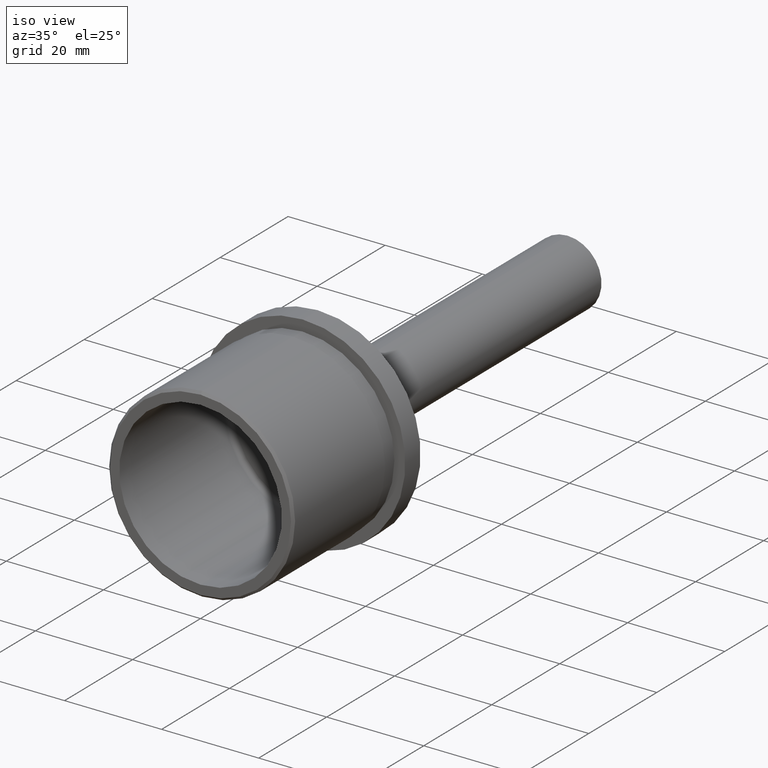
[diagram: clean part render]
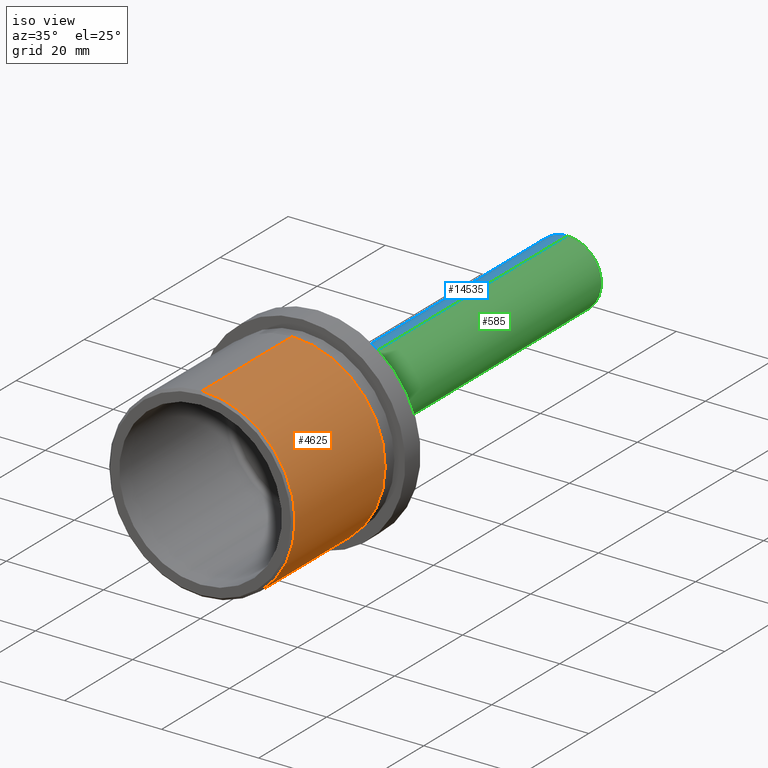
[diagram: same view with three faces highlighted in distinct colors, each labeled with its STEP entity id]
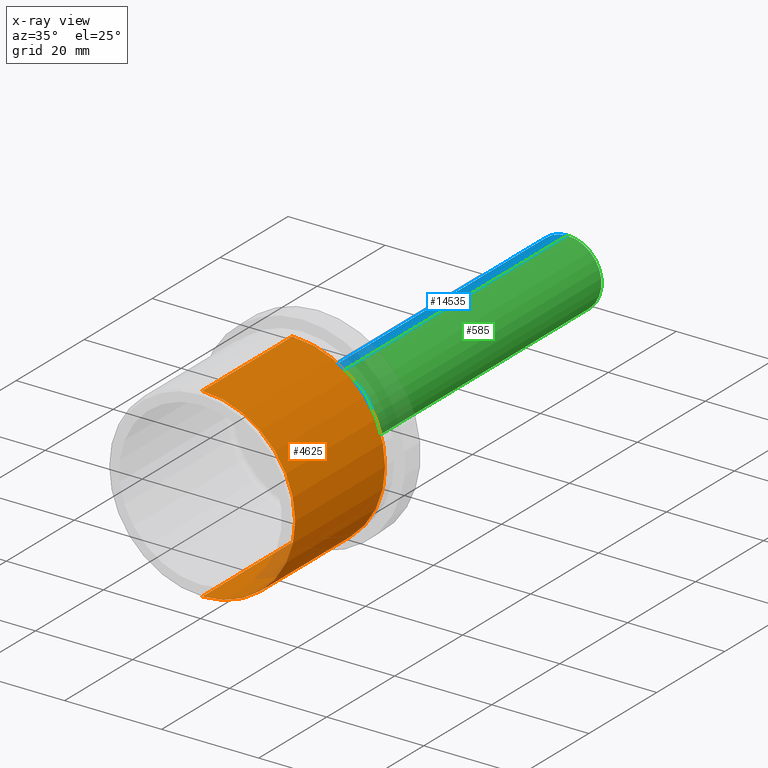
[diagram: x-ray of the same camera — body ghosted, the three highlighted faces saturated]
A machine part, iso view with three faces highlighted in distinct colors.
The next image is the same camera in x-ray (body ghosted, the three faces saturated) — at least one of them is partly hidden behind the body in this view.
Their STEP definitions:

[orange] entity #4625 — the highlighted cylindrical surface (partial cylindrical patch) has radius 19.15 mm, axis along (-0, -1, -0).
#254 = CIRCLE ( 'NONE', #8988, 19.15000000000000200 ) ;
#259 = VERTEX_POINT ( 'NONE', #7801 ) ;
#300 = LINE ( 'NONE', #5862, #1967 ) ;
#963 = VERTEX_POINT ( 'NONE', #1171 ) ;
#1171 = CARTESIAN_POINT ( 'NONE',  ( 0.0000000000000000000, 27.00000000000000000, -19.14999999999999900 ) ) ;
#1259 = DIRECTION ( 'NONE',  ( -0.0000000000000000000, -1.000000000000000000, -0.0000000000000000000 ) ) ;
#1967 = VECTOR ( 'NONE', #19537, 1000.000000000000000 ) ;
#2225 = FACE_OUTER_BOUND ( 'NONE', #11492, .T. ) ;
#2725 = CARTESIAN_POINT ( 'NONE',  ( 0.0000000000000000000, 0.5000000000000004400, 19.15000000000000200 ) ) ;
#2776 = CARTESIAN_POINT ( 'NONE',  ( 0.0000000000000000000, 0.5000000000000004400, 0.0000000000000000000 ) ) ;
#3545 = DIRECTION ( 'NONE',  ( 0.0000000000000000000, 0.0000000000000000000, -1.000000000000000000 ) ) ;
#3958 = DIRECTION ( 'NONE',  ( 0.0000000000000000000, 0.0000000000000000000, -1.000000000000000000 ) ) ;
#4385 = ORIENTED_EDGE ( 'NONE', *, *, #17042, .F. ) ;
#4625 = ADVANCED_FACE ( 'NONE', ( #2225 ), #8462, .T. ) ;
#4891 = CARTESIAN_POINT ( 'NONE',  ( 0.0000000000000000000, 32.00000000000000000, 0.0000000000000000000 ) ) ;
#4958 = EDGE_CURVE ( 'NONE', #259, #13490, #6293, .T. ) ;
#5838 = CARTESIAN_POINT ( 'NONE',  ( 2.345198620367181400E-015, 32.00000000000000000, 19.14999999999999900 ) ) ;
#5862 = CARTESIAN_POINT ( 'NONE',  ( 0.0000000000000000000, 32.00000000000000000, -19.14999999999999900 ) ) ;
#6253 = DIRECTION ( 'NONE',  ( 0.0000000000000000000, 0.0000000000000000000, -1.000000000000000000 ) ) ;
#6293 = LINE ( 'NONE', #5838, #17519 ) ;
#6945 = AXIS2_PLACEMENT_3D ( 'NONE', #4891, #12715, #3545 ) ;
#7801 = CARTESIAN_POINT ( 'NONE',  ( 2.345198620367181000E-015, 27.00000000000000000, 19.14999999999999900 ) ) ;
#8462 = CYLINDRICAL_SURFACE ( 'NONE', #6945, 19.14999999999999900 ) ;
#8988 = AXIS2_PLACEMENT_3D ( 'NONE', #2776, #1259, #3958 ) ;
#9197 = AXIS2_PLACEMENT_3D ( 'NONE', #15468, #13858, #6253 ) ;
#9222 = EDGE_CURVE ( 'NONE', #963, #259, #10777, .T. ) ;
#10371 = ORIENTED_EDGE ( 'NONE', *, *, #9222, .T. ) ;
#10777 = CIRCLE ( 'NONE', #9197, 19.14999999999999900 ) ;
#11492 = EDGE_LOOP ( 'NONE', ( #10371, #12100, #4385, #15228 ) ) ;
#12100 = ORIENTED_EDGE ( 'NONE', *, *, #4958, .T. ) ;
#12715 = DIRECTION ( 'NONE',  ( -0.0000000000000000000, -1.000000000000000000, -0.0000000000000000000 ) ) ;
#12754 = EDGE_CURVE ( 'NONE', #963, #13552, #300, .T. ) ;
#13490 = VERTEX_POINT ( 'NONE', #2725 ) ;
#13552 = VERTEX_POINT ( 'NONE', #18038 ) ;
#13858 = DIRECTION ( 'NONE',  ( -0.0000000000000000000, -1.000000000000000000, -0.0000000000000000000 ) ) ;
#14712 = DIRECTION ( 'NONE',  ( -0.0000000000000000000, -1.000000000000000000, -0.0000000000000000000 ) ) ;
#15228 = ORIENTED_EDGE ( 'NONE', *, *, #12754, .F. ) ;
#15468 = CARTESIAN_POINT ( 'NONE',  ( 0.0000000000000000000, 27.00000000000000000, 0.0000000000000000000 ) ) ;
#17042 = EDGE_CURVE ( 'NONE', #13552, #13490, #254, .T. ) ;
#17519 = VECTOR ( 'NONE', #14712, 1000.000000000000000 ) ;
#18038 = CARTESIAN_POINT ( 'NONE',  ( 2.345198620367182200E-015, 0.5000000000000004400, -19.15000000000000200 ) ) ;
#19537 = DIRECTION ( 'NONE',  ( -0.0000000000000000000, -1.000000000000000000, -0.0000000000000000000 ) ) ;

[blue] entity #14535 — the highlighted cylindrical surface (partial cylindrical patch) has radius 7 mm, axis along (-0, -1, -0).
#314 = DIRECTION ( 'NONE',  ( 0.0000000000000000000, 0.0000000000000000000, -1.000000000000000000 ) ) ;
#555 = ORIENTED_EDGE ( 'NONE', *, *, #15385, .F. ) ;
#647 = LINE ( 'NONE', #7256, #15234 ) ;
#1222 = DIRECTION ( 'NONE',  ( -0.0000000000000000000, -1.000000000000000000, -0.0000000000000000000 ) ) ;
#1525 = VERTEX_POINT ( 'NONE', #11651 ) ;
#2281 = EDGE_CURVE ( 'NONE', #1525, #4856, #19745, .T. ) ;
#2640 = ORIENTED_EDGE ( 'NONE', *, *, #19696, .T. ) ;
#3618 = FACE_OUTER_BOUND ( 'NONE', #12402, .T. ) ;
#3680 = CARTESIAN_POINT ( 'NONE',  ( 1.140915624175497200E-015, 41.00000000000000000, 7.000000000000006200 ) ) ;
#3715 = CARTESIAN_POINT ( 'NONE',  ( 0.0000000000000000000, 41.00000000000000000, -7.000000000000006200 ) ) ;
#4023 = AXIS2_PLACEMENT_3D ( 'NONE', #15331, #9269, #314 ) ;
#4856 = VERTEX_POINT ( 'NONE', #3680 ) ;
#4917 = CARTESIAN_POINT ( 'NONE',  ( 0.0000000000000000000, 107.9999999999999900, -7.000000000000000000 ) ) ;
#5829 = CARTESIAN_POINT ( 'NONE',  ( 8.572527594031475200E-016, 32.00000000000000000, 7.000000000000002700 ) ) ;
#6386 = AXIS2_PLACEMENT_3D ( 'NONE', #14997, #10271, #11735 ) ;
#6448 = CIRCLE ( 'NONE', #4023, 7.000000000000000000 ) ;
#7256 = CARTESIAN_POINT ( 'NONE',  ( 0.0000000000000000000, 32.00000000000000000, -7.000000000000002700 ) ) ;
#7507 = DIRECTION ( 'NONE',  ( 0.0000000000000000000, 0.0000000000000000000, -1.000000000000000000 ) ) ;
#8168 = CIRCLE ( 'NONE', #6386, 7.000000000000006200 ) ;
#8461 = AXIS2_PLACEMENT_3D ( 'NONE', #10460, #1222, #7507 ) ;
#8825 = VERTEX_POINT ( 'NONE', #4917 ) ;
#9269 = DIRECTION ( 'NONE',  ( -0.0000000000000000000, -1.000000000000000000, -0.0000000000000000000 ) ) ;
#9995 = EDGE_CURVE ( 'NONE', #1525, #8825, #6448, .T. ) ;
#10271 = DIRECTION ( 'NONE',  ( -0.0000000000000000000, -1.000000000000000000, -0.0000000000000000000 ) ) ;
#10321 = DIRECTION ( 'NONE',  ( -0.0000000000000000000, -1.000000000000000000, -0.0000000000000000000 ) ) ;
#10460 = CARTESIAN_POINT ( 'NONE',  ( 0.0000000000000000000, 32.00000000000000000, 0.0000000000000000000 ) ) ;
#11164 = VECTOR ( 'NONE', #10321, 1000.000000000000000 ) ;
#11651 = CARTESIAN_POINT ( 'NONE',  ( 8.572527594031474200E-016, 107.9999999999999900, 7.000000000000000000 ) ) ;
#11735 = DIRECTION ( 'NONE',  ( 0.0000000000000000000, 0.0000000000000000000, -1.000000000000000000 ) ) ;
#12402 = EDGE_LOOP ( 'NONE', ( #14353, #12831, #2640, #555 ) ) ;
#12831 = ORIENTED_EDGE ( 'NONE', *, *, #9995, .T. ) ;
#12914 = CYLINDRICAL_SURFACE ( 'NONE', #8461, 7.000000000000002700 ) ;
#14353 = ORIENTED_EDGE ( 'NONE', *, *, #2281, .F. ) ;
#14535 = ADVANCED_FACE ( 'NONE', ( #3618 ), #12914, .T. ) ;
#14997 = CARTESIAN_POINT ( 'NONE',  ( 0.0000000000000000000, 41.00000000000000000, 0.0000000000000000000 ) ) ;
#15234 = VECTOR ( 'NONE', #19382, 1000.000000000000000 ) ;
#15331 = CARTESIAN_POINT ( 'NONE',  ( 0.0000000000000000000, 107.9999999999999900, 0.0000000000000000000 ) ) ;
#15385 = EDGE_CURVE ( 'NONE', #4856, #15833, #8168, .T. ) ;
#15833 = VERTEX_POINT ( 'NONE', #3715 ) ;
#19382 = DIRECTION ( 'NONE',  ( -0.0000000000000000000, -1.000000000000000000, -0.0000000000000000000 ) ) ;
#19696 = EDGE_CURVE ( 'NONE', #8825, #15833, #647, .T. ) ;
#19745 = LINE ( 'NONE', #5829, #11164 ) ;

[green] entity #585 — the highlighted cylindrical surface (partial cylindrical patch) has radius 7 mm, axis along (-0, -1, -0).
#585 = ADVANCED_FACE ( 'NONE', ( #9756 ), #7857, .T. ) ;
#647 = LINE ( 'NONE', #7256, #15234 ) ;
#700 = DIRECTION ( 'NONE',  ( 0.0000000000000000000, 0.0000000000000000000, -1.000000000000000000 ) ) ;
#1525 = VERTEX_POINT ( 'NONE', #11651 ) ;
#2281 = EDGE_CURVE ( 'NONE', #1525, #4856, #19745, .T. ) ;
#2809 = CARTESIAN_POINT ( 'NONE',  ( 0.0000000000000000000, 32.00000000000000000, 0.0000000000000000000 ) ) ;
#3120 = AXIS2_PLACEMENT_3D ( 'NONE', #12885, #15767, #17367 ) ;
#3168 = CIRCLE ( 'NONE', #5143, 7.000000000000000000 ) ;
#3188 = ORIENTED_EDGE ( 'NONE', *, *, #8455, .F. ) ;
#3680 = CARTESIAN_POINT ( 'NONE',  ( 1.140915624175497200E-015, 41.00000000000000000, 7.000000000000006200 ) ) ;
#3715 = CARTESIAN_POINT ( 'NONE',  ( 0.0000000000000000000, 41.00000000000000000, -7.000000000000006200 ) ) ;
#4335 = DIRECTION ( 'NONE',  ( -0.0000000000000000000, -1.000000000000000000, -0.0000000000000000000 ) ) ;
#4761 = EDGE_CURVE ( 'NONE', #8825, #1525, #3168, .T. ) ;
#4856 = VERTEX_POINT ( 'NONE', #3680 ) ;
#4917 = CARTESIAN_POINT ( 'NONE',  ( 0.0000000000000000000, 107.9999999999999900, -7.000000000000000000 ) ) ;
#5080 = ORIENTED_EDGE ( 'NONE', *, *, #19696, .F. ) ;
#5143 = AXIS2_PLACEMENT_3D ( 'NONE', #19187, #19058, #700 ) ;
#5331 = ORIENTED_EDGE ( 'NONE', *, *, #2281, .T. ) ;
#5690 = DIRECTION ( 'NONE',  ( 0.0000000000000000000, 0.0000000000000000000, -1.000000000000000000 ) ) ;
#5829 = CARTESIAN_POINT ( 'NONE',  ( 8.572527594031475200E-016, 32.00000000000000000, 7.000000000000002700 ) ) ;
#6678 = ORIENTED_EDGE ( 'NONE', *, *, #4761, .T. ) ;
#7256 = CARTESIAN_POINT ( 'NONE',  ( 0.0000000000000000000, 32.00000000000000000, -7.000000000000002700 ) ) ;
#7857 = CYLINDRICAL_SURFACE ( 'NONE', #14473, 7.000000000000002700 ) ;
#8455 = EDGE_CURVE ( 'NONE', #15833, #4856, #9337, .T. ) ;
#8825 = VERTEX_POINT ( 'NONE', #4917 ) ;
#9337 = CIRCLE ( 'NONE', #3120, 7.000000000000006200 ) ;
#9756 = FACE_OUTER_BOUND ( 'NONE', #13111, .T. ) ;
#10321 = DIRECTION ( 'NONE',  ( -0.0000000000000000000, -1.000000000000000000, -0.0000000000000000000 ) ) ;
#11164 = VECTOR ( 'NONE', #10321, 1000.000000000000000 ) ;
#11651 = CARTESIAN_POINT ( 'NONE',  ( 8.572527594031474200E-016, 107.9999999999999900, 7.000000000000000000 ) ) ;
#12885 = CARTESIAN_POINT ( 'NONE',  ( 0.0000000000000000000, 41.00000000000000000, 0.0000000000000000000 ) ) ;
#13111 = EDGE_LOOP ( 'NONE', ( #6678, #5331, #3188, #5080 ) ) ;
#14473 = AXIS2_PLACEMENT_3D ( 'NONE', #2809, #4335, #5690 ) ;
#15234 = VECTOR ( 'NONE', #19382, 1000.000000000000000 ) ;
#15767 = DIRECTION ( 'NONE',  ( -0.0000000000000000000, -1.000000000000000000, -0.0000000000000000000 ) ) ;
#15833 = VERTEX_POINT ( 'NONE', #3715 ) ;
#17367 = DIRECTION ( 'NONE',  ( 0.0000000000000000000, 0.0000000000000000000, -1.000000000000000000 ) ) ;
#19058 = DIRECTION ( 'NONE',  ( -0.0000000000000000000, -1.000000000000000000, -0.0000000000000000000 ) ) ;
#19187 = CARTESIAN_POINT ( 'NONE',  ( 0.0000000000000000000, 107.9999999999999900, 0.0000000000000000000 ) ) ;
#19382 = DIRECTION ( 'NONE',  ( -0.0000000000000000000, -1.000000000000000000, -0.0000000000000000000 ) ) ;
#19696 = EDGE_CURVE ( 'NONE', #8825, #15833, #647, .T. ) ;
#19745 = LINE ( 'NONE', #5829, #11164 ) ;